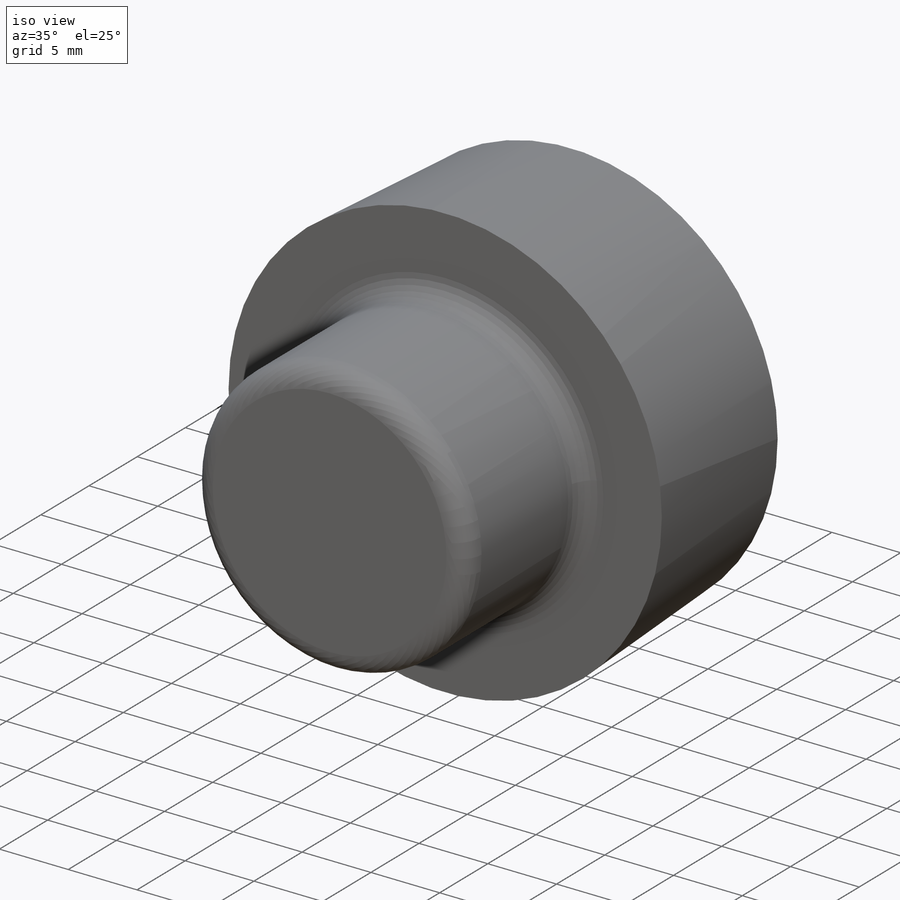
[diagram: iso view]
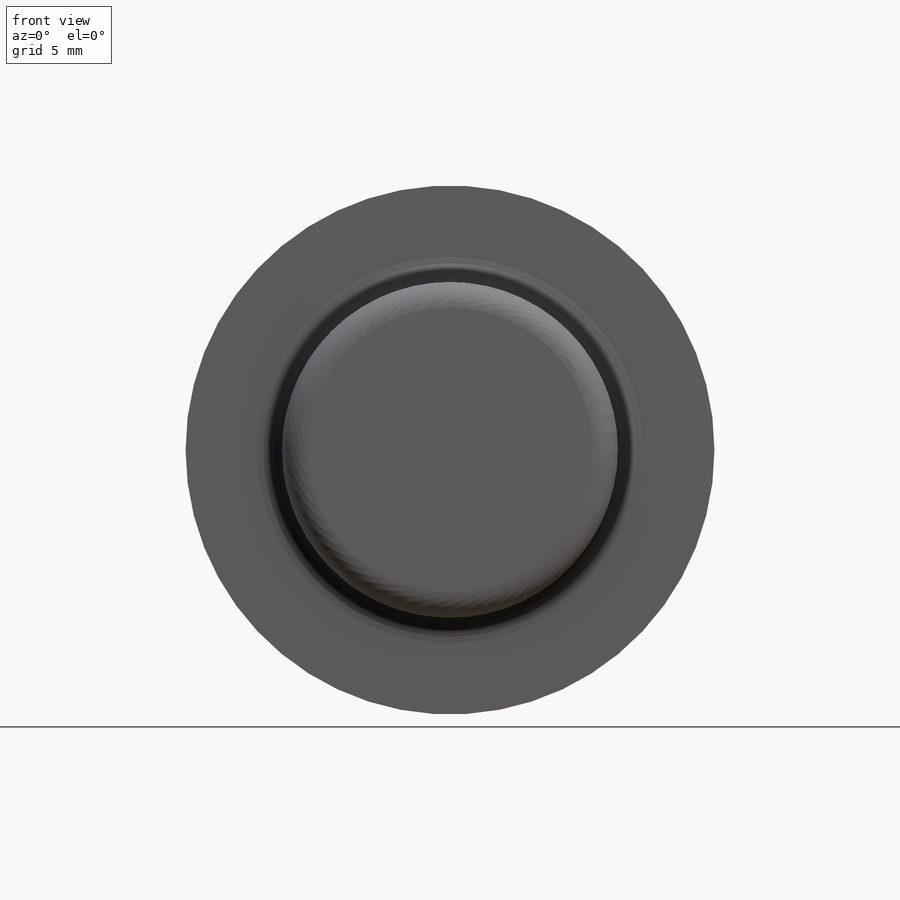
[diagram: front view]
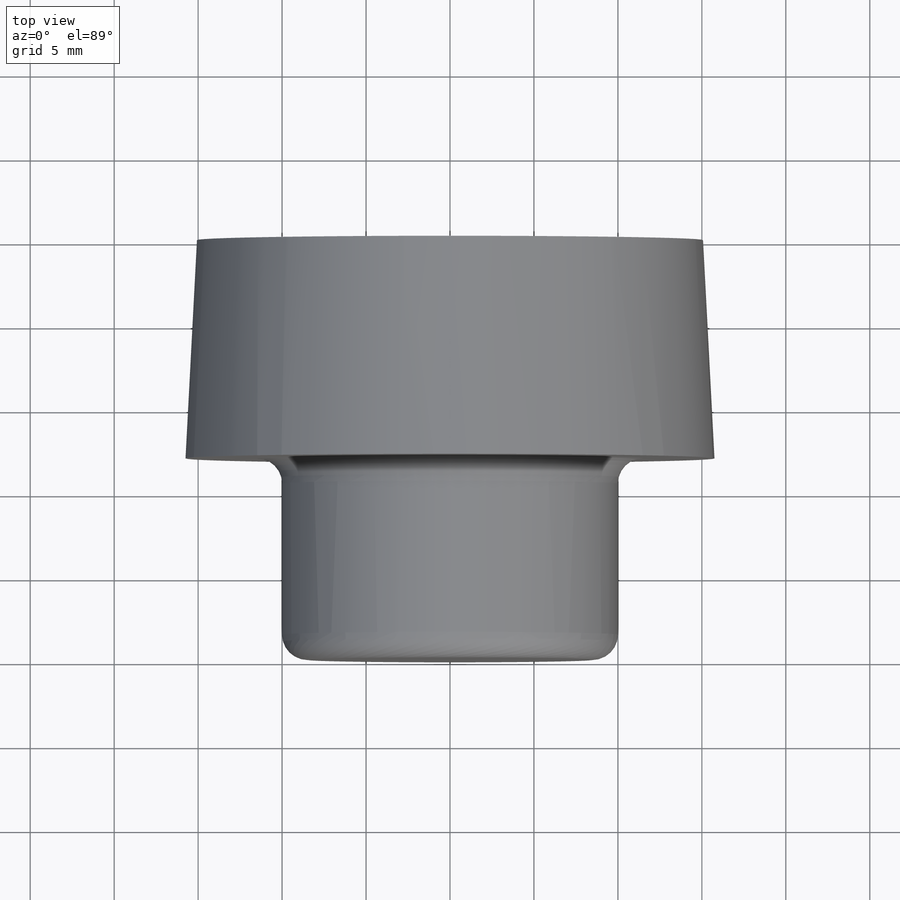
[diagram: top view]
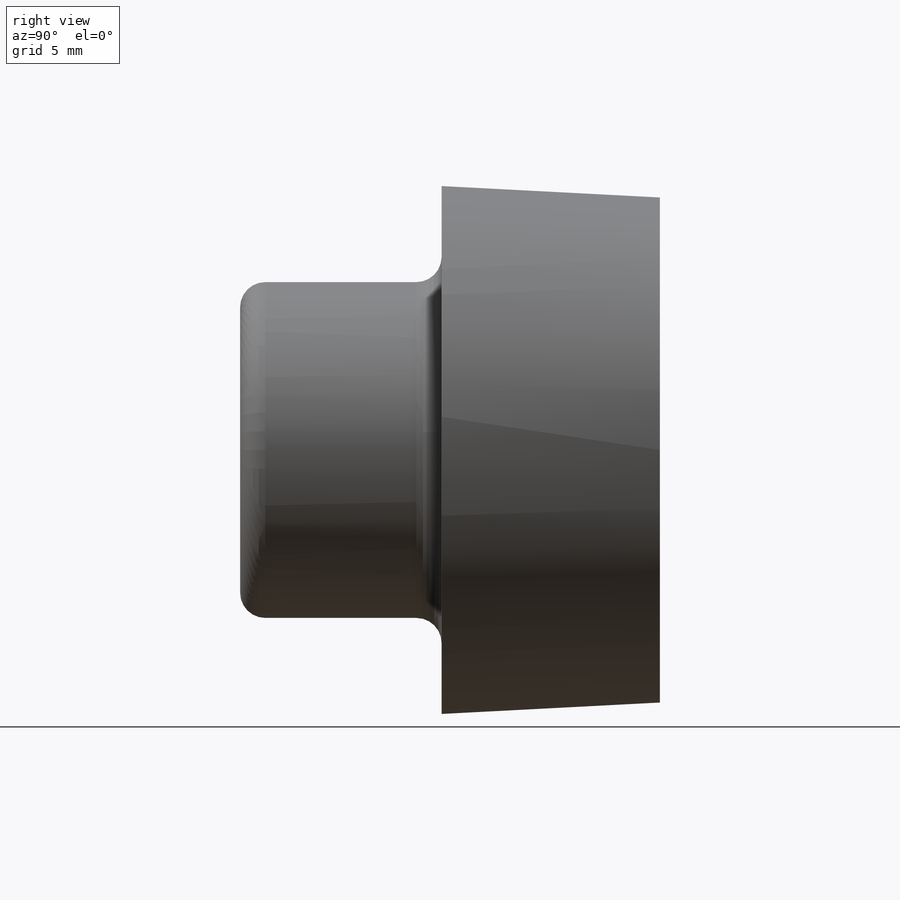
[diagram: right view]
SOLIDWORKS PART (.sldprt)
format: sldprt  version: not decoded by parser v0  size: 444,928 bytes
history: native  units: mm
features: sketch x5, extrude x4, fillet x2, material x1, shell x1, chamfer x1, pattern_circular x1 + 2 further entries (+13 scaffold rows collapsed)
feature tree (30):
  scaffold x13  (default folders/planes/origin — collapsed)
  material  "Material <not specified>"
  "Y"
  "Z"
  sketch  "Inside"  dims[c1.D1=31.5mm c1.D2=6.2mm c1.D3=28.0mm c1.D4=10.0mm c2.D3=1.6mm c2.D4=1.5mm]
  extrude  "Boss-Extrude5"  Depth=13mm
  sketch  "Outside"  dims[D1=20.0mm]
  extrude  "Boss-Extrude6"  Depth=12mm
  fillet  "Fillet4"  Radius=1.5mm
  shell  "Shell3"  Thickness=1.5mm
  extrude  "Boss-Extrude7"  [1 undecoded]
  sketch  "Inside<11>"
  fillet  "Fillet5"  Radius=1.5mm
  extrude  "Boss-Extrude9"  [1 undecoded]
  sketch  "Inside<14>"  dims[D1=10.0mm]
  chamfer  "Chamfer6"  Distance=0.5mm Angle=30deg
  sketch  "Sketch2"  dims[c1.D1=~2.684179mm c2.D1=0.8mm]
  pattern_circular  "CirPattern2"  Count=8 Angle=45deg
decode coverage: 11 of 14 modeling features carry decoded parameters; 2 rows unclassified (native names shown)
note: ~ marks probable driven/reference dimensions
note: 2 parameter values undecoded
note: suppression state not decoded; provenance and decode notes live in map.json
